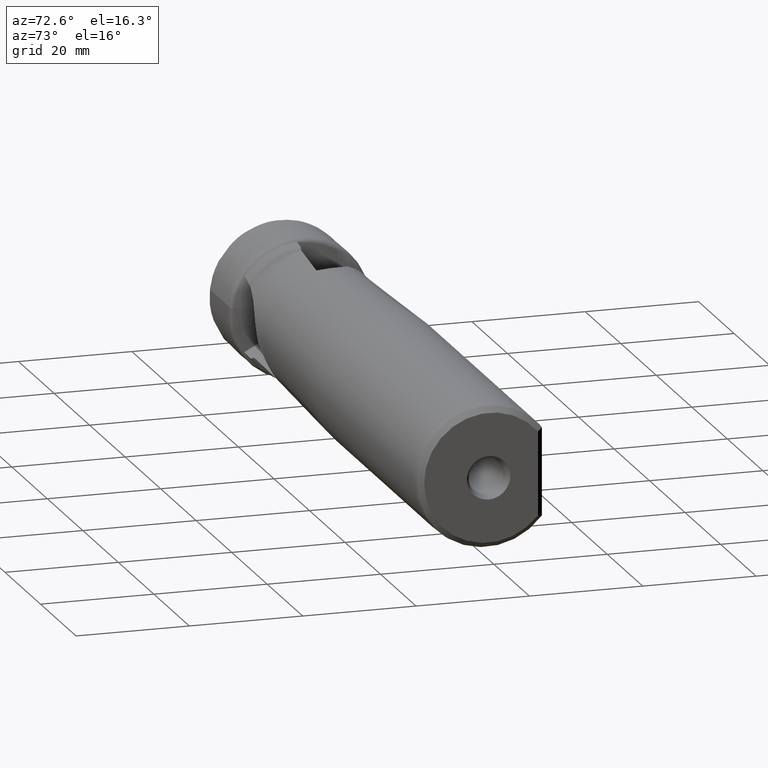
[diagram: clean part render]
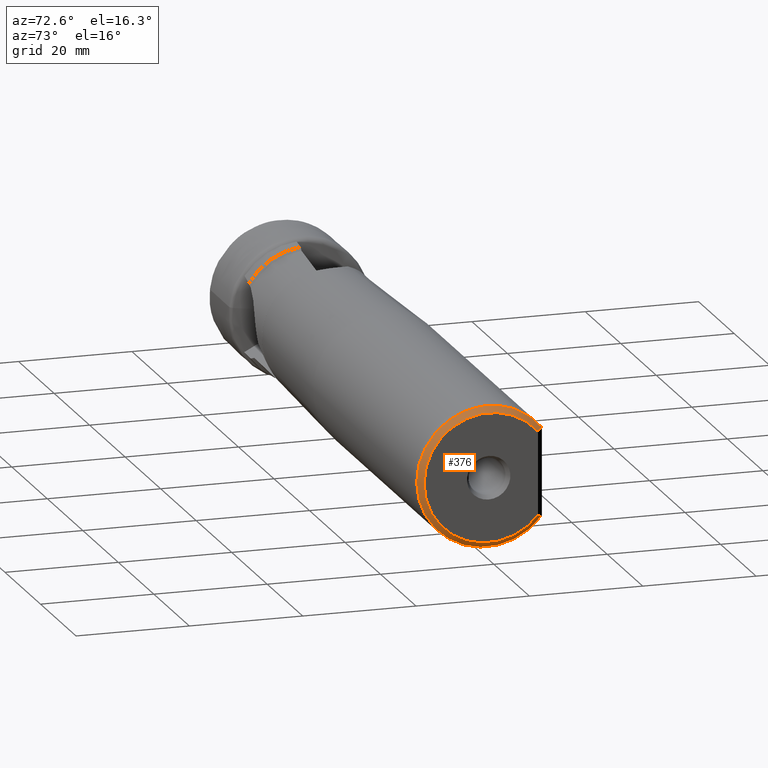
[diagram: same view with one face highlighted and labeled with its STEP entity id]
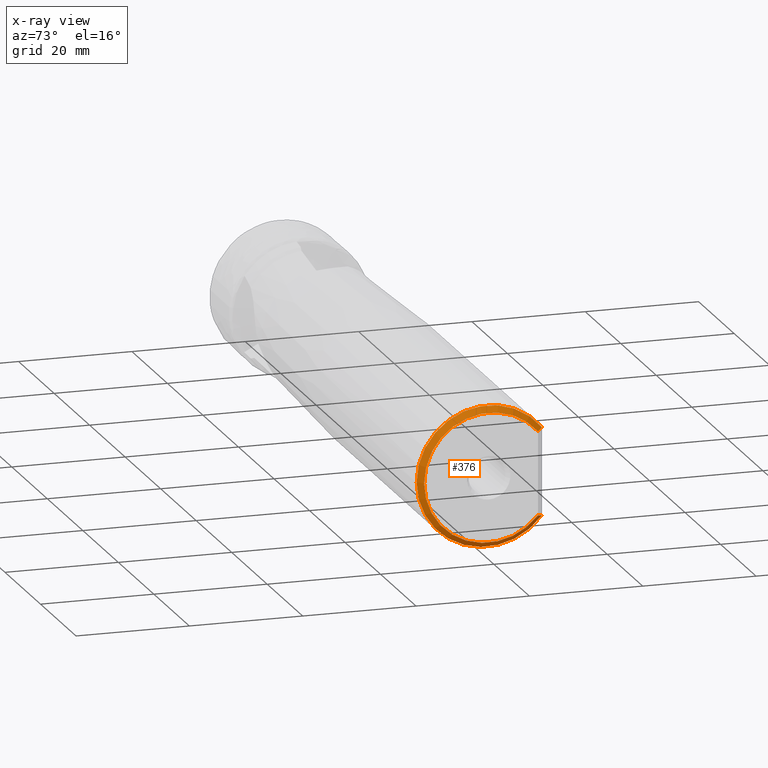
[diagram: x-ray of the same camera — body ghosted, the highlighted face saturated]
A machine part, auxiliary view. The second image highlights one B-rep face of the part: STEP entity #376.
The next image is the same camera in x-ray: the body ghosted, the highlighted face saturated — about 0% of this face is hidden behind the body in this view.
In plain terms, the highlighted conical surface has half-angle 45 deg.
Its self-contained STEP definition (entity closure, byte-faithful):
#376 = ADVANCED_FACE ( 'NONE', ( #3262 ), #1422, .T. ) ;
#484 = VERTEX_POINT ( 'NONE', #549 ) ;
#549 = CARTESIAN_POINT ( 'NONE',  ( 116.0999999999999900, 9.700000000000004600, 7.724635913753276700 ) ) ;
#639 = CIRCLE ( 'NONE', #3970, 12.40000000000000000 ) ;
#736 = CARTESIAN_POINT ( 'NONE',  ( 116.0999999999999900, 9.700000000000004600, -7.724635913750230300 ) ) ;
#891 = EDGE_LOOP ( 'NONE', ( #2026, #2217, #2003, #950 ) ) ;
#950 = ORIENTED_EDGE ( 'NONE', *, *, #3979, .T. ) ;
#1054 = VERTEX_POINT ( 'NONE', #3954 ) ;
#1064 = CARTESIAN_POINT ( 'NONE',  ( 116.0999999999999900, 9.700000000000004600, -7.724635913750230300 ) ) ;
#1113 = DIRECTION ( 'NONE',  ( -1.000000000000000000, -0.0000000000000000000, -0.0000000000000000000 ) ) ;
#1124 = DIRECTION ( 'NONE',  ( 0.0000000000000000000, 0.0000000000000000000, 1.000000000000000000 ) ) ;
#1313 = EDGE_CURVE ( 'NONE', #3931, #484, #2803, .T. ) ;
#1344 = EDGE_CURVE ( 'NONE', #3975, #484, #639, .T. ) ;
#1422 = CONICAL_SURFACE ( 'NONE', #1444, 11.40000000000000000, 0.7853981633974473900 ) ;
#1429 = CARTESIAN_POINT ( 'NONE',  ( 116.4337933991562600, 9.366206600843742800, 7.607964760859055700 ) ) ;
#1440 = DIRECTION ( 'NONE',  ( -1.000000000000000000, -0.0000000000000000000, -0.0000000000000000000 ) ) ;
#1444 = AXIS2_PLACEMENT_3D ( 'NONE', #3433, #1440, #1124 ) ;
#1703 = DIRECTION ( 'NONE',  ( -1.000000000000000000, -0.0000000000000000000, -0.0000000000000000000 ) ) ;
#1726 = CARTESIAN_POINT ( 'NONE',  ( 116.7671585454246600, 9.032841454575336800, -7.488806661377844300 ) ) ;
#2003 = ORIENTED_EDGE ( 'NONE', *, *, #1344, .F. ) ;
#2026 = ORIENTED_EDGE ( 'NONE', *, *, #2363, .T. ) ;
#2217 = ORIENTED_EDGE ( 'NONE', *, *, #1313, .T. ) ;
#2357 = AXIS2_PLACEMENT_3D ( 'NONE', #3681, #1703, #4029 ) ;
#2363 = EDGE_CURVE ( 'NONE', #1054, #3931, #2531, .T. ) ;
#2401 = CARTESIAN_POINT ( 'NONE',  ( 117.0999999999999900, 8.699999999999995700, 7.366817494685210300 ) ) ;
#2531 = CIRCLE ( 'NONE', #2357, 11.40000000000000000 ) ;
#2689 = CARTESIAN_POINT ( 'NONE',  ( 117.0999999999999900, 8.699999999999995700, 7.366817494685210300 ) ) ;
#2714 = CARTESIAN_POINT ( 'NONE',  ( 116.4337933991565800, 9.366206600843401700, -7.607964760858931400 ) ) ;
#2803 = B_SPLINE_CURVE_WITH_KNOTS ( 'NONE', 3,
 ( #2401, #3073, #1429, #3738 ),
 .UNSPECIFIED., .F., .F.,
 ( 4, 4 ),
 ( 2.921820456633550900E-007, 0.001459070445190681000 ),
 .UNSPECIFIED. ) ;
#2996 = B_SPLINE_CURVE_WITH_KNOTS ( 'NONE', 3,
 ( #1064, #2714, #1726, #4050 ),
 .UNSPECIFIED., .F., .F.,
 ( 4, 4 ),
 ( 2.913490185863788400E-007, 0.001459069612162859600 ),
 .UNSPECIFIED. ) ;
#3073 = CARTESIAN_POINT ( 'NONE',  ( 116.7671585454244800, 9.032841454575510900, 7.488806661377911000 ) ) ;
#3082 = CARTESIAN_POINT ( 'NONE',  ( 116.0999999999999900, 0.0000000000000000000, 0.0000000000000000000 ) ) ;
#3262 = FACE_OUTER_BOUND ( 'NONE', #891, .T. ) ;
#3413 = DIRECTION ( 'NONE',  ( 0.0000000000000000000, 0.0000000000000000000, 1.000000000000000000 ) ) ;
#3433 = CARTESIAN_POINT ( 'NONE',  ( 117.0999999999999900, 0.0000000000000000000, 0.0000000000000000000 ) ) ;
#3681 = CARTESIAN_POINT ( 'NONE',  ( 117.0999999999999900, 0.0000000000000000000, 0.0000000000000000000 ) ) ;
#3738 = CARTESIAN_POINT ( 'NONE',  ( 116.0999999999999900, 9.700000000000004600, 7.724635913753276700 ) ) ;
#3931 = VERTEX_POINT ( 'NONE', #2689 ) ;
#3954 = CARTESIAN_POINT ( 'NONE',  ( 117.0999999999999900, 8.699999999999995700, -7.366817494685209400 ) ) ;
#3970 = AXIS2_PLACEMENT_3D ( 'NONE', #3082, #1113, #3413 ) ;
#3975 = VERTEX_POINT ( 'NONE', #736 ) ;
#3979 = EDGE_CURVE ( 'NONE', #3975, #1054, #2996, .T. ) ;
#4029 = DIRECTION ( 'NONE',  ( 0.0000000000000000000, 0.0000000000000000000, 1.000000000000000000 ) ) ;
#4050 = CARTESIAN_POINT ( 'NONE',  ( 117.0999999999999900, 8.699999999999995700, -7.366817494685209400 ) ) ;